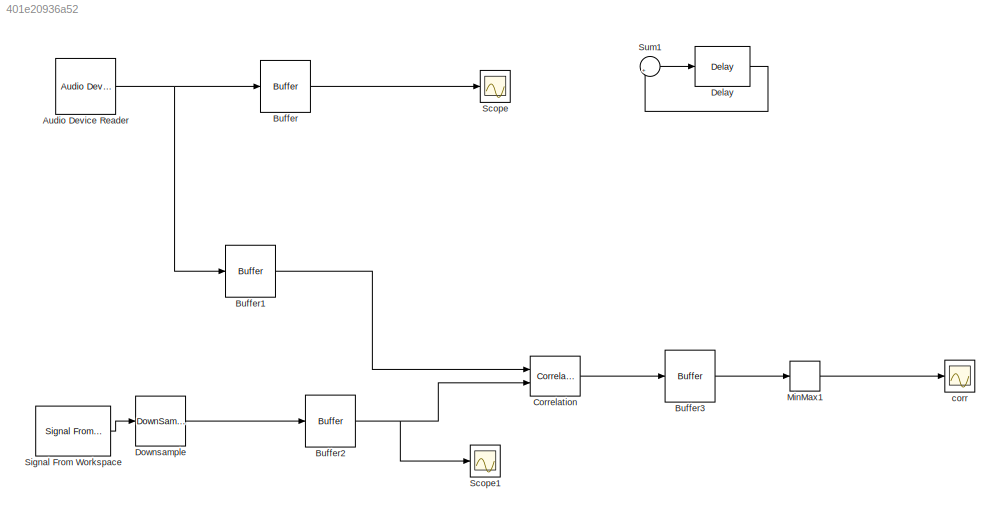
MODEL slx_401e20936a52
KIND model
CONFIG AbsTol = auto
CONFIG FixedStep = auto
CONFIG MaxStep = auto
CONFIG MinStep = auto
CONFIG RelTol = 1e-3
CONFIG SampleTimeConstraint = Unconstrained
CONFIG Solver = VariableStepAuto
CONFIG SolverMode = Auto
CONFIG SolverName = VariableStepAuto
CONFIG StartTime = 0.0
CONFIG StopTime = inf
WORKSPACE source: MAT-file member
WORKSPACE MCOS: class17 (value not decoded)
BLOCK [Reference] Audio Device Reader  REF=audiosources/Audio Device
Reader
  Ports = [0, 1]
  SourceBlock = audiosources/Audio Device\nReader
  SourceType = Audio Device Reader
BLOCK [Buffer] Buffer
  N = 1
  OutputFrames = off
  TreatMby1Signals = One channel
BLOCK [Buffer] Buffer1
  Commented = on
  N = 1500
  OutputFrames = off
  TreatMby1Signals = One channel
BLOCK [Buffer] Buffer2
  Commented = on
  N = 1500
  OutputFrames = off
  TreatMby1Signals = One channel
BLOCK [Buffer] Buffer3
  Commented = on
  N = 100
  OutputFrames = off
  TreatMby1Signals = One channel
BLOCK [Reference] Correlation  REF=dspstat3/Correlation
  Commented = on
  Ports = [2, 1]
  SourceBlock = dspstat3/Correlation
  SourceType = Correlation
BLOCK [Delay] Delay
  Commented = on
  DelayLength = 600000
  InputPortMap = u0
  InputProcessing = Columns as channels (frame based)
  Ports = [1, 1]
BLOCK [DownSample] Downsample
  Commented = on
  N = 100
BLOCK [MinMax] MinMax1
  Commented = on
  Function = max
  InputSameDT = off
  Ports = [1, 1]
  SaturateOnIntegerOverflow = off
  ZeroCross = off
BLOCK [Scope] Scope
  Ports = [1]
  ScopeSpecificationString = Simulink.scopes.TimeScopeBlockCfg('CurrentConfiguration', extmgr.ConfigurationSet(extmgr.Configuration('Core','General UI',true),extmgr.Configuration('Core','Source UI',true),extmgr.Configuration('Sources','WiredSimulink',true),extmgr.Configuration('Visuals','Time Domain',true,'SerializedDisplays',{struct('MinYLimReal','-1.25264','MaxYLimReal','1.24732','YLabelReal','','MinYLimMag','0.00000','MaxY...<+1424ch>
BLOCK [Scope] Scope1
  Commented = on
  Ports = [1]
  ScopeSpecificationString = Simulink.scopes.TimeScopeBlockCfg('CurrentConfiguration', extmgr.ConfigurationSet(extmgr.Configuration('Core','General UI',true),extmgr.Configuration('Core','Source UI',true),extmgr.Configuration('Sources','WiredSimulink',true,'DataLoggingVariableName','ScopeData1'),extmgr.Configuration('Visuals','Time Domain',true,'SerializedDisplays',{struct('MinYLimReal','-1.24696','MaxYLimReal','1.22267','YLab...<+1395ch>
BLOCK [Reference] Signal From Workspace  REF=dspsrcs4/Signal From
Workspace
  Commented = on
  Ports = [0, 1]
  SourceBlock = dspsrcs4/Signal From\nWorkspace
  SourceType = Signal From Workspace
BLOCK [Sum] Sum1
  Commented = on
  IconShape = round
  InputSameDT = off
  Inputs = |++
  OutDataTypeStr = Inherit: Inherit via internal rule
  Ports = [2, 1]
  SaturateOnIntegerOverflow = off
BLOCK [Scope] corr 
  Commented = on
  Ports = [1]
  ScopeSpecificationString = Simulink.scopes.TimeScopeBlockCfg('CurrentConfiguration', extmgr.ConfigurationSet(extmgr.Configuration('Core','General UI',true),extmgr.Configuration('Core','Source UI',true),extmgr.Configuration('Sources','WiredSimulink',true,'DataLoggingVariableName','ScopeData1','DataLoggingLimitDataPoints',true,'DataLoggingSaveFormat','Array','DataLoggingDecimation','1','DataLoggingDecimateData',true),extmgr.C...<+1592ch>
NET Audio Device Reader:1 -> Buffer1:1, Buffer:1
LINE Buffer1:1 -> Correlation:1
NET Buffer2:1 -> Correlation:2, Scope1:1
LINE Buffer3:1 -> MinMax1:1
LINE Buffer:1 -> Scope:1
LINE Correlation:1 -> Buffer3:1
LINE Delay:1 -> Sum1:2
LINE Downsample:1 -> Buffer2:1
LINE MinMax1:1 -> corr :1
LINE Signal From Workspace:1 -> Downsample:1
LINE Sum1:1 -> Delay:1
note: NET lines group one-source signal fan-out (src -> all destinations, sorted); 1:1 wires keep LINE
